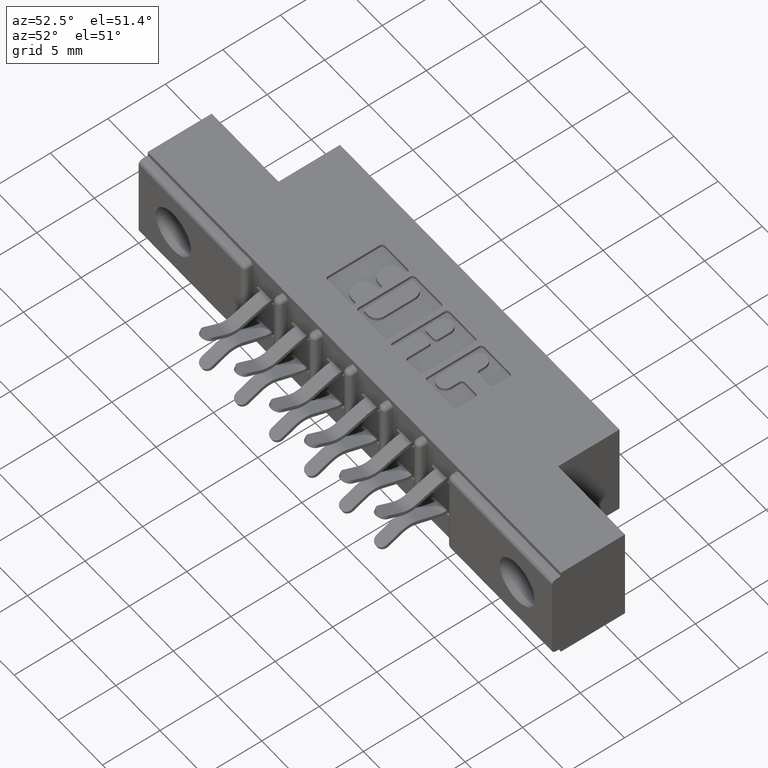
[diagram: clean part render]
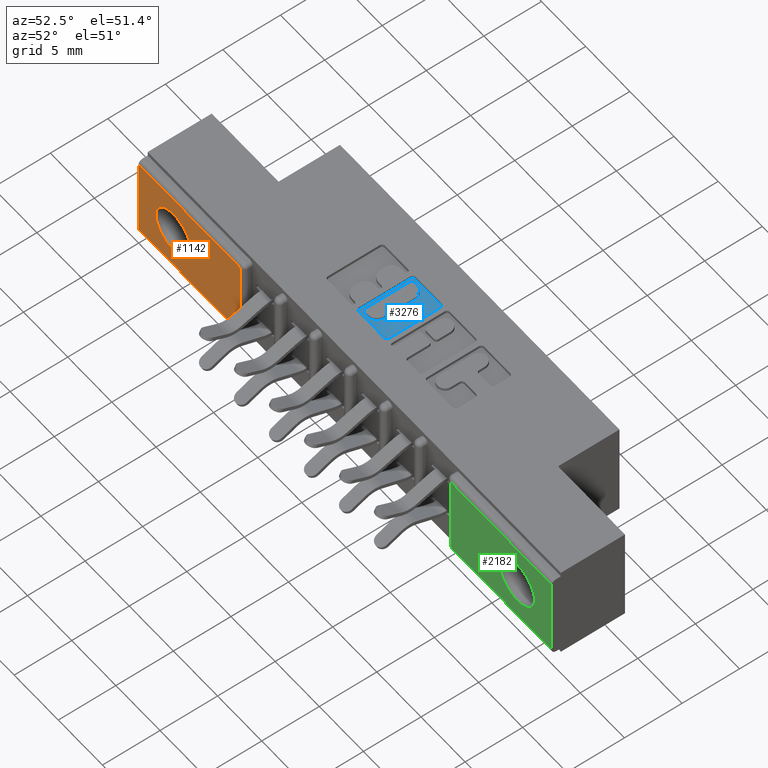
[diagram: same view with three faces highlighted in distinct colors, each labeled with its STEP entity id]
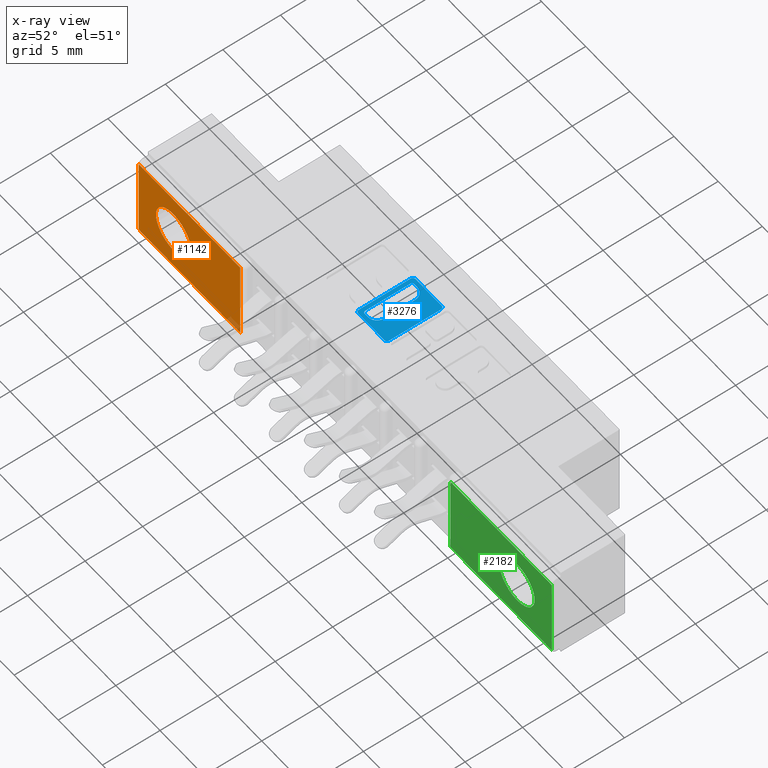
[diagram: x-ray of the same camera — body ghosted, the three highlighted faces saturated]
A machine part, auxiliary view with three faces highlighted in distinct colors.
The next image is the same camera in x-ray (body ghosted, the three faces saturated) — at least one of them is partly hidden behind the body in this view.
Their STEP definitions:

[orange] entity #1142 — the highlighted planar face has unit normal (0, -1, 0).
#112 = DIRECTION ( 'NONE',  ( 0.0000000000000000000, -1.000000000000000000, 0.0000000000000000000 ) ) ;
#254 = LINE ( 'NONE', #10661, #4293 ) ;
#261 = DIRECTION ( 'NONE',  ( 0.0000000000000000000, 0.0000000000000000000, -1.000000000000000000 ) ) ;
#408 = VECTOR ( 'NONE', #1221, 39.37007874015748100 ) ;
#499 = LINE ( 'NONE', #8006, #8580 ) ;
#743 = EDGE_CURVE ( 'NONE', #1356, #8540, #499, .T. ) ;
#954 = ORIENTED_EDGE ( 'NONE', *, *, #4984, .T. ) ;
#1142 = ADVANCED_FACE ( 'NONE', ( #8987, #9126 ), #8383, .T. ) ;
#1221 = DIRECTION ( 'NONE',  ( -0.0000000000000000000, -0.0000000000000000000, 1.000000000000000000 ) ) ;
#1228 = AXIS2_PLACEMENT_3D ( 'NONE', #5761, #8422, #4885 ) ;
#1356 = VERTEX_POINT ( 'NONE', #7938 ) ;
#2053 = CIRCLE ( 'NONE', #9616, 0.07800000000000000000 ) ;
#2563 = CARTESIAN_POINT ( 'NONE',  ( 0.4530000000000001800, 0.0000000000000000000, -0.02999999999999995400 ) ) ;
#2813 = DIRECTION ( 'NONE',  ( 0.0000000000000000000, -1.000000000000000000, 0.0000000000000000000 ) ) ;
#2870 = DIRECTION ( 'NONE',  ( 0.0000000000000000000, 0.0000000000000000000, -1.000000000000000000 ) ) ;
#4293 = VECTOR ( 'NONE', #6246, 39.37007874015748100 ) ;
#4471 = DIRECTION ( 'NONE',  ( -0.0000000000000000000, -0.0000000000000000000, 1.000000000000000000 ) ) ;
#4568 = ORIENTED_EDGE ( 'NONE', *, *, #6076, .T. ) ;
#4657 = EDGE_CURVE ( 'NONE', #11360, #9178, #7648, .T. ) ;
#4885 = DIRECTION ( 'NONE',  ( 0.0000000000000000000, -0.0000000000000000000, -1.000000000000000000 ) ) ;
#4984 = EDGE_CURVE ( 'NONE', #8540, #9178, #254, .T. ) ;
#5057 = EDGE_LOOP ( 'NONE', ( #6386, #6497 ) ) ;
#5138 = EDGE_LOOP ( 'NONE', ( #4568, #8167, #954, #10075 ) ) ;
#5505 = CARTESIAN_POINT ( 'NONE',  ( 1.842000000000000700, 0.0000000000000000000, -0.3130000000000000600 ) ) ;
#5587 = EDGE_CURVE ( 'NONE', #9179, #9665, #2053, .T. ) ;
#5761 = CARTESIAN_POINT ( 'NONE',  ( 0.0000000000000000000, 0.0000000000000000000, -0.3430000000000000300 ) ) ;
#6076 = EDGE_CURVE ( 'NONE', #11360, #1356, #8304, .T. ) ;
#6246 = DIRECTION ( 'NONE',  ( -1.000000000000000000, 0.0000000000000000000, 0.0000000000000000000 ) ) ;
#6352 = DIRECTION ( 'NONE',  ( 1.000000000000000000, -0.0000000000000000000, -0.0000000000000000000 ) ) ;
#6386 = ORIENTED_EDGE ( 'NONE', *, *, #11015, .F. ) ;
#6497 = ORIENTED_EDGE ( 'NONE', *, *, #5587, .F. ) ;
#6504 = CARTESIAN_POINT ( 'NONE',  ( 0.1549999999999998600, 0.0000000000000000000, -0.1715000000000000100 ) ) ;
#6598 = CARTESIAN_POINT ( 'NONE',  ( 0.0000000000000000000, 0.0000000000000000000, -0.02999999999999995400 ) ) ;
#7023 = CARTESIAN_POINT ( 'NONE',  ( 0.0000000000000000000, 0.0000000000000000000, -0.3130000000000000600 ) ) ;
#7648 = LINE ( 'NONE', #8390, #408 ) ;
#7938 = CARTESIAN_POINT ( 'NONE',  ( 0.4530000000000003500, 0.0000000000000000000, -0.3130000000000000600 ) ) ;
#8006 = CARTESIAN_POINT ( 'NONE',  ( 0.4530000000000001800, 0.0000000000000000000, -0.02999999999999995400 ) ) ;
#8167 = ORIENTED_EDGE ( 'NONE', *, *, #743, .T. ) ;
#8304 = LINE ( 'NONE', #5505, #10502 ) ;
#8383 = PLANE ( 'NONE',  #1228 ) ;
#8390 = CARTESIAN_POINT ( 'NONE',  ( 0.0000000000000000000, 0.0000000000000000000, 0.0000000000000000000 ) ) ;
#8422 = DIRECTION ( 'NONE',  ( 0.0000000000000000000, -1.000000000000000000, 0.0000000000000000000 ) ) ;
#8540 = VERTEX_POINT ( 'NONE', #2563 ) ;
#8580 = VECTOR ( 'NONE', #4471, 39.37007874015748100 ) ;
#8987 = FACE_BOUND ( 'NONE', #5057, .T. ) ;
#9126 = FACE_OUTER_BOUND ( 'NONE', #5138, .T. ) ;
#9178 = VERTEX_POINT ( 'NONE', #6598 ) ;
#9179 = VERTEX_POINT ( 'NONE', #10916 ) ;
#9580 = AXIS2_PLACEMENT_3D ( 'NONE', #6504, #2813, #261 ) ;
#9616 = AXIS2_PLACEMENT_3D ( 'NONE', #10728, #112, #2870 ) ;
#9665 = VERTEX_POINT ( 'NONE', #10207 ) ;
#9722 = CIRCLE ( 'NONE', #9580, 0.07800000000000000000 ) ;
#10075 = ORIENTED_EDGE ( 'NONE', *, *, #4657, .F. ) ;
#10207 = CARTESIAN_POINT ( 'NONE',  ( 0.1549999999999998600, 0.0000000000000000000, -0.2495000000000000000 ) ) ;
#10502 = VECTOR ( 'NONE', #6352, 39.37007874015748100 ) ;
#10661 = CARTESIAN_POINT ( 'NONE',  ( 0.0000000000000000000, 0.0000000000000000000, -0.02999999999999995400 ) ) ;
#10728 = CARTESIAN_POINT ( 'NONE',  ( 0.1549999999999998600, 0.0000000000000000000, -0.1715000000000000100 ) ) ;
#10916 = CARTESIAN_POINT ( 'NONE',  ( 0.1549999999999998600, 0.0000000000000000000, -0.09350000000000000000 ) ) ;
#11015 = EDGE_CURVE ( 'NONE', #9665, #9179, #9722, .T. ) ;
#11360 = VERTEX_POINT ( 'NONE', #7023 ) ;

[blue] entity #3276 — the highlighted planar face has unit normal (0, 0, 1).
#458 = CARTESIAN_POINT ( 'NONE',  ( 0.7867707099629762700, 0.1571589681657927500, -0.01000000000000000000 ) ) ;
#571 = CIRCLE ( 'NONE', #3518, 0.03141014465217017300 ) ;
#598 = ORIENTED_EDGE ( 'NONE', *, *, #5421, .T. ) ;
#623 = LINE ( 'NONE', #6624, #7331 ) ;
#646 = PLANE ( 'NONE',  #10193 ) ;
#711 = DIRECTION ( 'NONE',  ( -0.0000000000000000000, 0.0000000000000000000, 1.000000000000000000 ) ) ;
#838 = ORIENTED_EDGE ( 'NONE', *, *, #9223, .F. ) ;
#897 = CARTESIAN_POINT ( 'NONE',  ( 0.7906969780444990100, 0.3230437946100595500, -0.01000000000000000000 ) ) ;
#956 = VECTOR ( 'NONE', #5527, 39.37007874015748100 ) ;
#995 = EDGE_LOOP ( 'NONE', ( #6833, #7415, #1849, #5685, #838, #7781, #8081, #8804 ) ) ;
#1161 = ORIENTED_EDGE ( 'NONE', *, *, #6875, .T. ) ;
#1374 = VECTOR ( 'NONE', #11315, 39.37007874015748100 ) ;
#1527 = VERTEX_POINT ( 'NONE', #3082 ) ;
#1540 = CARTESIAN_POINT ( 'NONE',  ( 0.8432108136348439600, 0.2985046191005553700, -0.01000000000000000000 ) ) ;
#1547 = DIRECTION ( 'NONE',  ( -0.0000000000000000000, 0.0000000000000000000, 1.000000000000000000 ) ) ;
#1564 = DIRECTION ( 'NONE',  ( -0.0000000000000000000, 0.0000000000000000000, 1.000000000000000000 ) ) ;
#1566 = VERTEX_POINT ( 'NONE', #8360 ) ;
#1619 = CARTESIAN_POINT ( 'NONE',  ( 0.9025956183678624000, 0.1473432979619860000, -0.01000000000000000000 ) ) ;
#1674 = DIRECTION ( 'NONE',  ( -0.0000000000000000000, 0.0000000000000000000, 1.000000000000000000 ) ) ;
#1761 = DIRECTION ( 'NONE',  ( -0.0000000000000000000, 0.0000000000000000000, 1.000000000000000000 ) ) ;
#1849 = ORIENTED_EDGE ( 'NONE', *, *, #8988, .F. ) ;
#2021 = LINE ( 'NONE', #11308, #5676 ) ;
#2122 = DIRECTION ( 'NONE',  ( -0.0000000000000000000, 0.0000000000000000000, 1.000000000000000000 ) ) ;
#2246 = DIRECTION ( 'NONE',  ( 0.0000000000000000000, 1.000000000000000000, -0.0000000000000000000 ) ) ;
#2322 = DIRECTION ( 'NONE',  ( 1.000000000000000000, 0.0000000000000000000, 0.0000000000000000000 ) ) ;
#2397 = DIRECTION ( 'NONE',  ( 0.0000000000000000000, -1.000000000000000000, 0.0000000000000000000 ) ) ;
#2412 = CARTESIAN_POINT ( 'NONE',  ( 0.0000000000000000000, 0.1473432979619860000, -0.01000000000000000000 ) ) ;
#2644 = FACE_BOUND ( 'NONE', #995, .T. ) ;
#2737 = CARTESIAN_POINT ( 'NONE',  ( 0.8432108136348439600, 0.1924953808994873400, -0.01000000000000000000 ) ) ;
#2810 = CARTESIAN_POINT ( 'NONE',  ( 0.7769550397591695700, 0.1571589681657927500, -0.01000000000000000000 ) ) ;
#2851 = LINE ( 'NONE', #3327, #3254 ) ;
#2955 = VERTEX_POINT ( 'NONE', #6196 ) ;
#3082 = CARTESIAN_POINT ( 'NONE',  ( 0.7906969780444990100, 0.1679562053899803200, -0.01000000000000000000 ) ) ;
#3196 = DIRECTION ( 'NONE',  ( 1.000000000000000000, 0.0000000000000000000, 0.0000000000000000000 ) ) ;
#3254 = VECTOR ( 'NONE', #9576, 39.37007874015748100 ) ;
#3268 = CARTESIAN_POINT ( 'NONE',  ( 0.8118006689826737800, 0.1924953808994873400, -0.01000000000000000000 ) ) ;
#3276 = ADVANCED_FACE ( 'NONE', ( #2644, #5471 ), #646, .T. ) ;
#3327 = CARTESIAN_POINT ( 'NONE',  ( 0.9124112885716693100, 0.0000000000000000000, -0.01000000000000000000 ) ) ;
#3484 = EDGE_CURVE ( 'NONE', #11118, #5369, #9210, .T. ) ;
#3493 = DIRECTION ( 'NONE',  ( -0.0000000000000000000, 0.0000000000000000000, 1.000000000000000000 ) ) ;
#3518 = AXIS2_PLACEMENT_3D ( 'NONE', #3268, #711, #3196 ) ;
#3588 = AXIS2_PLACEMENT_3D ( 'NONE', #5238, #3493, #6127 ) ;
#3629 = EDGE_CURVE ( 'NONE', #9327, #4486, #10049, .T. ) ;
#4036 = ORIENTED_EDGE ( 'NONE', *, *, #5090, .T. ) ;
#4051 = VERTEX_POINT ( 'NONE', #897 ) ;
#4195 = AXIS2_PLACEMENT_3D ( 'NONE', #5319, #1674, #8802 ) ;
#4486 = VERTEX_POINT ( 'NONE', #2810 ) ;
#4775 = CARTESIAN_POINT ( 'NONE',  ( 0.7975679471871667300, 0.3299147637527272700, -0.01000000000000000000 ) ) ;
#4857 = CARTESIAN_POINT ( 'NONE',  ( 0.7975679471871622800, 0.1679562053899803200, -0.01000000000000000000 ) ) ;
#4980 = CARTESIAN_POINT ( 'NONE',  ( 0.9025956183678963700, 0.3436567020380538200, -0.01000000000000000000 ) ) ;
#4981 = CARTESIAN_POINT ( 'NONE',  ( 0.0000000000000000000, 0.0000000000000000000, -0.01000000000000000000 ) ) ;
#5090 = EDGE_CURVE ( 'NONE', #8187, #7946, #7759, .T. ) ;
#5131 = DIRECTION ( 'NONE',  ( -0.0000000000000000000, 0.0000000000000000000, 1.000000000000000000 ) ) ;
#5149 = VECTOR ( 'NONE', #2246, 39.37007874015748100 ) ;
#5219 = DIRECTION ( 'NONE',  ( 1.000000000000000000, 0.0000000000000000000, 0.0000000000000000000 ) ) ;
#5238 = CARTESIAN_POINT ( 'NONE',  ( 0.7867707099630104600, 0.3338410318342129300, -0.01000000000000000000 ) ) ;
#5319 = CARTESIAN_POINT ( 'NONE',  ( 0.8118006689826720000, 0.2985046191005553700, -0.01000000000000000000 ) ) ;
#5369 = VERTEX_POINT ( 'NONE', #6610 ) ;
#5421 = EDGE_CURVE ( 'NONE', #2955, #8187, #5563, .T. ) ;
#5471 = FACE_OUTER_BOUND ( 'NONE', #6335, .T. ) ;
#5527 = DIRECTION ( 'NONE',  ( 0.0000000000000000000, -1.000000000000000000, 0.0000000000000000000 ) ) ;
#5549 = CIRCLE ( 'NONE', #8154, 0.006870969142663185300 ) ;
#5563 = LINE ( 'NONE', #2412, #1374 ) ;
#5676 = VECTOR ( 'NONE', #8914, 39.37007874015748100 ) ;
#5685 = ORIENTED_EDGE ( 'NONE', *, *, #10642, .T. ) ;
#5771 = DIRECTION ( 'NONE',  ( -0.0000000000000000000, 0.0000000000000000000, 1.000000000000000000 ) ) ;
#5875 = VERTEX_POINT ( 'NONE', #9571 ) ;
#5921 = EDGE_CURVE ( 'NONE', #5875, #6060, #2021, .T. ) ;
#5931 = CIRCLE ( 'NONE', #10657, 0.009815670203841039800 ) ;
#6060 = VERTEX_POINT ( 'NONE', #7312 ) ;
#6127 = DIRECTION ( 'NONE',  ( 1.000000000000000000, 0.0000000000000000000, 0.0000000000000000000 ) ) ;
#6128 = VERTEX_POINT ( 'NONE', #2737 ) ;
#6165 = EDGE_CURVE ( 'NONE', #8384, #6445, #623, .T. ) ;
#6196 = CARTESIAN_POINT ( 'NONE',  ( 0.7867707099629762700, 0.1473432979619860000, -0.01000000000000000000 ) ) ;
#6335 = EDGE_LOOP ( 'NONE', ( #1161, #8476, #10802, #11389, #9455, #10040, #598, #4036 ) ) ;
#6378 = AXIS2_PLACEMENT_3D ( 'NONE', #10425, #5131, #10282 ) ;
#6445 = VERTEX_POINT ( 'NONE', #9012 ) ;
#6610 = CARTESIAN_POINT ( 'NONE',  ( 0.8118006689826782200, 0.3299147637527272700, -0.01000000000000000000 ) ) ;
#6624 = CARTESIAN_POINT ( 'NONE',  ( 0.0000000000000000000, 0.3436567020380538200, -0.01000000000000000000 ) ) ;
#6692 = DIRECTION ( 'NONE',  ( 1.000000000000000000, 0.0000000000000000000, 0.0000000000000000000 ) ) ;
#6820 = VECTOR ( 'NONE', #2397, 39.37007874015748100 ) ;
#6833 = ORIENTED_EDGE ( 'NONE', *, *, #11284, .F. ) ;
#6875 = EDGE_CURVE ( 'NONE', #7946, #1566, #2851, .T. ) ;
#6885 = CARTESIAN_POINT ( 'NONE',  ( 0.7769550397591695700, 0.3338410318342129300, -0.01000000000000000000 ) ) ;
#6894 = CARTESIAN_POINT ( 'NONE',  ( 0.9025956183678624000, 0.1571589681657927500, -0.01000000000000000000 ) ) ;
#7138 = CIRCLE ( 'NONE', #4195, 0.03141014465217194900 ) ;
#7216 = LINE ( 'NONE', #9351, #5149 ) ;
#7297 = EDGE_CURVE ( 'NONE', #1566, #8384, #5931, .T. ) ;
#7312 = CARTESIAN_POINT ( 'NONE',  ( 0.7975679471871622800, 0.1610852362473171000, -0.01000000000000000000 ) ) ;
#7331 = VECTOR ( 'NONE', #10186, 39.37007874015748100 ) ;
#7415 = ORIENTED_EDGE ( 'NONE', *, *, #3484, .T. ) ;
#7493 = DIRECTION ( 'NONE',  ( 1.000000000000000000, 0.0000000000000000000, 0.0000000000000000000 ) ) ;
#7701 = DIRECTION ( 'NONE',  ( 1.000000000000000000, 0.0000000000000000000, 0.0000000000000000000 ) ) ;
#7759 = CIRCLE ( 'NONE', #10477, 0.009815670203806891800 ) ;
#7781 = ORIENTED_EDGE ( 'NONE', *, *, #5921, .T. ) ;
#7946 = VERTEX_POINT ( 'NONE', #8954 ) ;
#8081 = ORIENTED_EDGE ( 'NONE', *, *, #11070, .F. ) ;
#8143 = CARTESIAN_POINT ( 'NONE',  ( 0.7769550397591695700, 0.0000000000000000000, -0.01000000000000000000 ) ) ;
#8154 = AXIS2_PLACEMENT_3D ( 'NONE', #4857, #5771, #7493 ) ;
#8171 = CIRCLE ( 'NONE', #6378, 0.006870969142667693000 ) ;
#8187 = VERTEX_POINT ( 'NONE', #1619 ) ;
#8360 = CARTESIAN_POINT ( 'NONE',  ( 0.9124112885716693100, 0.3338410318342129300, -0.01000000000000000000 ) ) ;
#8384 = VERTEX_POINT ( 'NONE', #4980 ) ;
#8470 = CIRCLE ( 'NONE', #10174, 0.009815670203806754800 ) ;
#8476 = ORIENTED_EDGE ( 'NONE', *, *, #7297, .T. ) ;
#8532 = CIRCLE ( 'NONE', #3588, 0.009815670203840902800 ) ;
#8802 = DIRECTION ( 'NONE',  ( 1.000000000000000000, 0.0000000000000000000, 0.0000000000000000000 ) ) ;
#8804 = ORIENTED_EDGE ( 'NONE', *, *, #10573, .T. ) ;
#8914 = DIRECTION ( 'NONE',  ( -1.000000000000000000, 0.0000000000000000000, 0.0000000000000000000 ) ) ;
#8954 = CARTESIAN_POINT ( 'NONE',  ( 0.9124112885716693100, 0.1571589681657927500, -0.01000000000000000000 ) ) ;
#8971 = EDGE_CURVE ( 'NONE', #6445, #9327, #8532, .T. ) ;
#8988 = EDGE_CURVE ( 'NONE', #11295, #5369, #7138, .T. ) ;
#9012 = CARTESIAN_POINT ( 'NONE',  ( 0.7867707099630104600, 0.3436567020380538200, -0.01000000000000000000 ) ) ;
#9210 = LINE ( 'NONE', #10631, #11405 ) ;
#9223 = EDGE_CURVE ( 'NONE', #5875, #6128, #571, .T. ) ;
#9327 = VERTEX_POINT ( 'NONE', #6885 ) ;
#9351 = CARTESIAN_POINT ( 'NONE',  ( 0.7906969780444990100, 0.0000000000000000000, -0.01000000000000000000 ) ) ;
#9455 = ORIENTED_EDGE ( 'NONE', *, *, #3629, .T. ) ;
#9463 = CARTESIAN_POINT ( 'NONE',  ( 0.8432108136348439600, 0.0000000000000000000, -0.01000000000000000000 ) ) ;
#9571 = CARTESIAN_POINT ( 'NONE',  ( 0.8118006689826737800, 0.1610852362473171000, -0.01000000000000000000 ) ) ;
#9576 = DIRECTION ( 'NONE',  ( 0.0000000000000000000, 1.000000000000000000, -0.0000000000000000000 ) ) ;
#9638 = DIRECTION ( 'NONE',  ( 1.000000000000000000, 0.0000000000000000000, 0.0000000000000000000 ) ) ;
#9642 = CARTESIAN_POINT ( 'NONE',  ( 0.9025956183678282000, 0.3338410318342128200, -0.01000000000000000000 ) ) ;
#10040 = ORIENTED_EDGE ( 'NONE', *, *, #11095, .T. ) ;
#10049 = LINE ( 'NONE', #8143, #956 ) ;
#10174 = AXIS2_PLACEMENT_3D ( 'NONE', #458, #2122, #6692 ) ;
#10186 = DIRECTION ( 'NONE',  ( -1.000000000000000000, 0.0000000000000000000, 0.0000000000000000000 ) ) ;
#10193 = AXIS2_PLACEMENT_3D ( 'NONE', #4981, #1547, #2322 ) ;
#10282 = DIRECTION ( 'NONE',  ( 1.000000000000000000, 0.0000000000000000000, 0.0000000000000000000 ) ) ;
#10425 = CARTESIAN_POINT ( 'NONE',  ( 0.7975679471871667300, 0.3230437946100595500, -0.01000000000000000000 ) ) ;
#10477 = AXIS2_PLACEMENT_3D ( 'NONE', #6894, #1564, #7701 ) ;
#10573 = EDGE_CURVE ( 'NONE', #1527, #4051, #7216, .T. ) ;
#10631 = CARTESIAN_POINT ( 'NONE',  ( 0.0000000000000000000, 0.3299147637527272700, -0.01000000000000000000 ) ) ;
#10642 = EDGE_CURVE ( 'NONE', #11295, #6128, #11523, .T. ) ;
#10657 = AXIS2_PLACEMENT_3D ( 'NONE', #9642, #1761, #5219 ) ;
#10802 = ORIENTED_EDGE ( 'NONE', *, *, #6165, .T. ) ;
#11070 = EDGE_CURVE ( 'NONE', #1527, #6060, #5549, .T. ) ;
#11095 = EDGE_CURVE ( 'NONE', #4486, #2955, #8470, .T. ) ;
#11118 = VERTEX_POINT ( 'NONE', #4775 ) ;
#11284 = EDGE_CURVE ( 'NONE', #11118, #4051, #8171, .T. ) ;
#11295 = VERTEX_POINT ( 'NONE', #1540 ) ;
#11308 = CARTESIAN_POINT ( 'NONE',  ( 0.0000000000000000000, 0.1610852362473171000, -0.01000000000000000000 ) ) ;
#11315 = DIRECTION ( 'NONE',  ( 1.000000000000000000, 0.0000000000000000000, 0.0000000000000000000 ) ) ;
#11389 = ORIENTED_EDGE ( 'NONE', *, *, #8971, .T. ) ;
#11405 = VECTOR ( 'NONE', #9638, 39.37007874015748100 ) ;
#11523 = LINE ( 'NONE', #9463, #6820 ) ;

[green] entity #2182 — the highlighted planar face has unit normal (0, -1, 0).
#473 = CARTESIAN_POINT ( 'NONE',  ( 0.0000000000000000000, 0.0000000000000000000, -0.3430000000000000300 ) ) ;
#626 = AXIS2_PLACEMENT_3D ( 'NONE', #7872, #3556, #9806 ) ;
#627 = CIRCLE ( 'NONE', #3765, 0.07800000000000008300 ) ;
#787 = EDGE_CURVE ( 'NONE', #1043, #2502, #4965, .T. ) ;
#847 = VERTEX_POINT ( 'NONE', #9716 ) ;
#885 = EDGE_CURVE ( 'NONE', #2502, #1043, #627, .T. ) ;
#985 = LINE ( 'NONE', #1508, #1553 ) ;
#1019 = PLANE ( 'NONE',  #7712 ) ;
#1043 = VERTEX_POINT ( 'NONE', #3668 ) ;
#1185 = ORIENTED_EDGE ( 'NONE', *, *, #4375, .F. ) ;
#1377 = CARTESIAN_POINT ( 'NONE',  ( 1.687000000000000900, 0.0000000000000000000, -0.09349999999999991700 ) ) ;
#1508 = CARTESIAN_POINT ( 'NONE',  ( 0.0000000000000000000, 0.0000000000000000000, -0.02999999999999995400 ) ) ;
#1513 = ORIENTED_EDGE ( 'NONE', *, *, #5283, .T. ) ;
#1553 = VECTOR ( 'NONE', #6889, 39.37007874015748100 ) ;
#2182 = ADVANCED_FACE ( 'NONE', ( #7571, #2959 ), #1019, .T. ) ;
#2291 = LINE ( 'NONE', #4270, #2547 ) ;
#2502 = VERTEX_POINT ( 'NONE', #1377 ) ;
#2547 = VECTOR ( 'NONE', #10329, 39.37007874015748100 ) ;
#2723 = CARTESIAN_POINT ( 'NONE',  ( 1.842000000000000700, 0.0000000000000000000, 0.0000000000000000000 ) ) ;
#2959 = FACE_OUTER_BOUND ( 'NONE', #7920, .T. ) ;
#3207 = VERTEX_POINT ( 'NONE', #7541 ) ;
#3267 = EDGE_CURVE ( 'NONE', #4240, #847, #985, .T. ) ;
#3556 = DIRECTION ( 'NONE',  ( 0.0000000000000000000, -1.000000000000000000, 0.0000000000000000000 ) ) ;
#3590 = DIRECTION ( 'NONE',  ( 0.0000000000000000000, 0.0000000000000000000, 1.000000000000000000 ) ) ;
#3668 = CARTESIAN_POINT ( 'NONE',  ( 1.687000000000000900, 0.0000000000000000000, -0.2495000000000001100 ) ) ;
#3754 = CARTESIAN_POINT ( 'NONE',  ( 1.842000000000000700, 0.0000000000000000000, -0.3130000000000000600 ) ) ;
#3765 = AXIS2_PLACEMENT_3D ( 'NONE', #7116, #10550, #3590 ) ;
#4240 = VERTEX_POINT ( 'NONE', #9608 ) ;
#4270 = CARTESIAN_POINT ( 'NONE',  ( 1.389000000000000200, 0.0000000000000000000, -0.3130000000000000600 ) ) ;
#4375 = EDGE_CURVE ( 'NONE', #4240, #3207, #6563, .T. ) ;
#4965 = CIRCLE ( 'NONE', #626, 0.07800000000000008300 ) ;
#4972 = CARTESIAN_POINT ( 'NONE',  ( 1.389000000000000200, 0.0000000000000000000, -0.3130000000000000600 ) ) ;
#5231 = DIRECTION ( 'NONE',  ( 0.0000000000000000000, -0.0000000000000000000, -1.000000000000000000 ) ) ;
#5283 = EDGE_CURVE ( 'NONE', #7732, #3207, #9581, .T. ) ;
#6347 = ORIENTED_EDGE ( 'NONE', *, *, #787, .F. ) ;
#6490 = ORIENTED_EDGE ( 'NONE', *, *, #3267, .T. ) ;
#6563 = LINE ( 'NONE', #2723, #10696 ) ;
#6642 = EDGE_LOOP ( 'NONE', ( #6347, #10673 ) ) ;
#6889 = DIRECTION ( 'NONE',  ( -1.000000000000000000, 0.0000000000000000000, 0.0000000000000000000 ) ) ;
#7116 = CARTESIAN_POINT ( 'NONE',  ( 1.687000000000000900, 0.0000000000000000000, -0.1715000000000000100 ) ) ;
#7236 = EDGE_CURVE ( 'NONE', #847, #7732, #2291, .T. ) ;
#7541 = CARTESIAN_POINT ( 'NONE',  ( 1.842000000000000700, 0.0000000000000000000, -0.3130000000000000600 ) ) ;
#7571 = FACE_BOUND ( 'NONE', #6642, .T. ) ;
#7593 = DIRECTION ( 'NONE',  ( 0.0000000000000000000, -1.000000000000000000, 0.0000000000000000000 ) ) ;
#7712 = AXIS2_PLACEMENT_3D ( 'NONE', #473, #7593, #5231 ) ;
#7732 = VERTEX_POINT ( 'NONE', #4972 ) ;
#7872 = CARTESIAN_POINT ( 'NONE',  ( 1.687000000000000900, 0.0000000000000000000, -0.1715000000000000100 ) ) ;
#7920 = EDGE_LOOP ( 'NONE', ( #6490, #9341, #1513, #1185 ) ) ;
#8976 = DIRECTION ( 'NONE',  ( 0.0000000000000000000, 0.0000000000000000000, -1.000000000000000000 ) ) ;
#9213 = DIRECTION ( 'NONE',  ( 1.000000000000000000, -0.0000000000000000000, -0.0000000000000000000 ) ) ;
#9341 = ORIENTED_EDGE ( 'NONE', *, *, #7236, .T. ) ;
#9581 = LINE ( 'NONE', #3754, #11357 ) ;
#9608 = CARTESIAN_POINT ( 'NONE',  ( 1.842000000000000700, 0.0000000000000000000, -0.02999999999999995400 ) ) ;
#9716 = CARTESIAN_POINT ( 'NONE',  ( 1.389000000000000200, 0.0000000000000000000, -0.02999999999999995400 ) ) ;
#9806 = DIRECTION ( 'NONE',  ( 0.0000000000000000000, 0.0000000000000000000, 1.000000000000000000 ) ) ;
#10329 = DIRECTION ( 'NONE',  ( -0.0000000000000000000, -0.0000000000000000000, -1.000000000000000000 ) ) ;
#10550 = DIRECTION ( 'NONE',  ( 0.0000000000000000000, -1.000000000000000000, 0.0000000000000000000 ) ) ;
#10673 = ORIENTED_EDGE ( 'NONE', *, *, #885, .F. ) ;
#10696 = VECTOR ( 'NONE', #8976, 39.37007874015748100 ) ;
#11357 = VECTOR ( 'NONE', #9213, 39.37007874015748100 ) ;